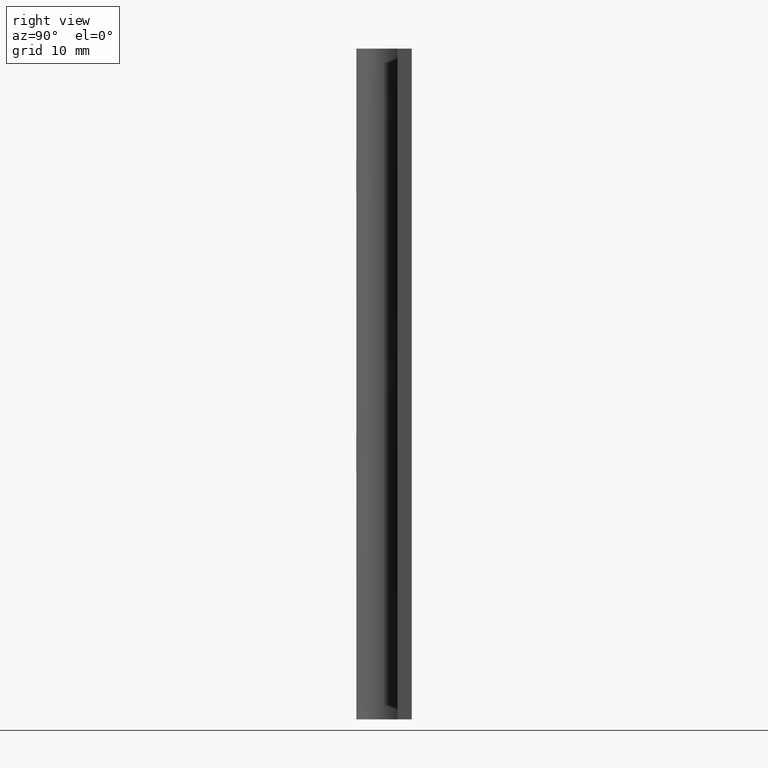
[diagram: clean part render]
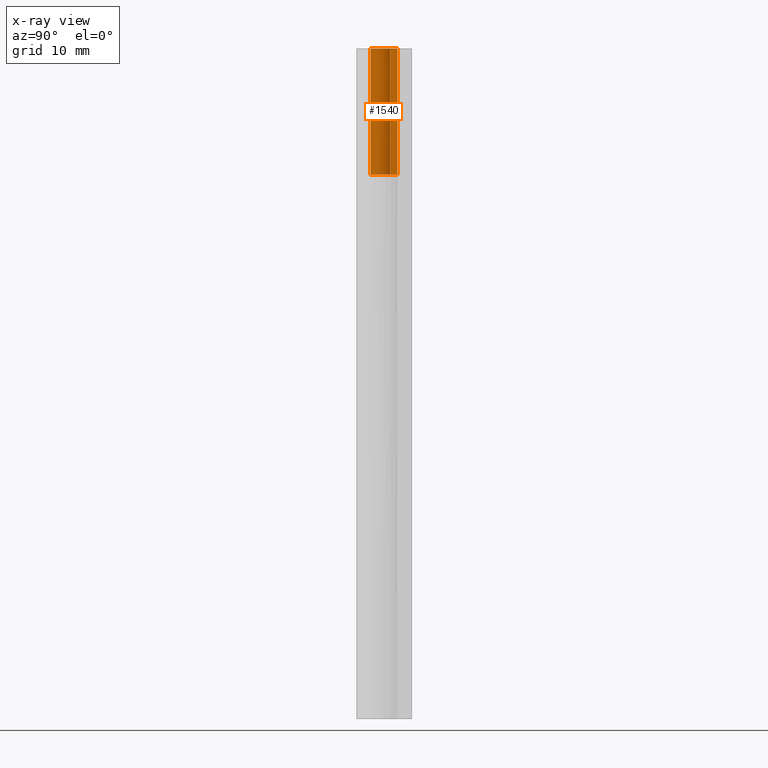
[diagram: x-ray — body ghosted, one internal face saturated and labeled with its STEP entity id]
A machine part, right view, then the same camera in x-ray: the body is ghosted and one INTERNAL B-rep face — a face not visible from any outside direction — is saturated and labeled: STEP entity #1540.
In plain terms, the highlighted face is a freeform B-spline surface patch.
Its self-contained STEP definition (entity closure, byte-faithful):
#1096=CARTESIAN_POINT('',(0.0,1.500000000000000,60.899993999999893));
#1097=VERTEX_POINT('',#1096);
#1103=CARTESIAN_POINT('',(1.325797621821314,0.701612903225808,60.899993999999893));
#1104=VERTEX_POINT('',#1103);
#1105=CARTESIAN_POINT('',(0.0,1.500000000000000,60.899993999999893));
#1106=CARTESIAN_POINT('',(-1.140047230937307,1.500000000000000,60.899993999999900));
#1107=CARTESIAN_POINT('',(-1.445249296287461,0.401565027835593,60.899993999999893));
#1108=CARTESIAN_POINT('',(-1.750451361637615,-0.696869944328815,60.899993999999900));
#1109=CARTESIAN_POINT('',(-0.773815431857393,-1.284994037892533,60.899993999999893));
#1110=CARTESIAN_POINT('',(0.202820497922827,-1.873118131456250,60.899993999999900));
#1111=CARTESIAN_POINT('',(1.030933009042893,-1.089576583295441,60.899993999999893));
#1112=CARTESIAN_POINT('',(1.859045520162959,-0.306035035134630,60.899993999999900));
#1113=CARTESIAN_POINT('',(1.325797621821314,0.701612903225808,60.899993999999893));
#1121=(BOUNDED_CURVE()B_SPLINE_CURVE(2,(#1105,#1106,#1107,#1108,#1109,#1110,#1111,#1112,#1113),.UNSPECIFIED.,.F.,.U.)B_SPLINE_CURVE_WITH_KNOTS((3,2,2,2,3),(0.0,0.250000000000000,0.500000000000000,0.750000000000000,1.0),.UNSPECIFIED.)CURVE()GEOMETRIC_REPRESENTATION_ITEM()RATIONAL_B_SPLINE_CURVE((1.0,0.796150117301085,1.0,0.796150117301085,1.0,0.796150117301085,1.0,0.796150117301085,1.0))REPRESENTATION_ITEM(''));
#1122=EDGE_CURVE('',#1097,#1104,#1121,.T.);
#1201=CARTESIAN_POINT('',(1.325797621821314,0.701612903225808,75.0));
#1202=VERTEX_POINT('',#1201);
#1208=CARTESIAN_POINT('',(0.0,1.500000000000000,75.0));
#1209=VERTEX_POINT('',#1208);
#1210=CARTESIAN_POINT('',(1.325797621821314,0.701612903225809,75.0));
#1211=CARTESIAN_POINT('',(1.859045520162960,-0.306035035134629,75.0));
#1212=CARTESIAN_POINT('',(1.030933009042894,-1.089576583295440,75.0));
#1213=CARTESIAN_POINT('',(0.202820497922828,-1.873118131456250,75.0));
#1214=CARTESIAN_POINT('',(-0.773815431857392,-1.284994037892534,75.0));
#1215=CARTESIAN_POINT('',(-1.750451361637613,-0.696869944328816,75.0));
#1216=CARTESIAN_POINT('',(-1.445249296287461,0.401565027835592,75.0));
#1217=CARTESIAN_POINT('',(-1.140047230937308,1.500000000000000,75.0));
#1218=CARTESIAN_POINT('',(0.0,1.500000000000000,75.0));
#1226=(BOUNDED_CURVE()B_SPLINE_CURVE(2,(#1210,#1211,#1212,#1213,#1214,#1215,#1216,#1217,#1218),.UNSPECIFIED.,.F.,.U.)B_SPLINE_CURVE_WITH_KNOTS((3,2,2,2,3),(0.0,0.250000000000000,0.500000000000000,0.750000000000000,1.0),.UNSPECIFIED.)CURVE()GEOMETRIC_REPRESENTATION_ITEM()RATIONAL_B_SPLINE_CURVE((1.0,0.796150117301085,1.0,0.796150117301085,1.0,0.796150117301085,1.0,0.796150117301085,1.0))REPRESENTATION_ITEM(''));
#1227=EDGE_CURVE('',#1202,#1209,#1226,.T.);
#1401=CARTESIAN_POINT('',(0.0,1.500000000000000,60.899993999999893));
#1402=CARTESIAN_POINT('',(0.0,1.500000000000000,75.0));
#1403=QUASI_UNIFORM_CURVE('',1,(#1401,#1402),.UNSPECIFIED.,.F.,.U.);
#1404=EDGE_CURVE('',#1097,#1209,#1403,.T.);
#1503=CARTESIAN_POINT('',(1.325797621821314,0.701612903225808,60.899993999999893));
#1504=CARTESIAN_POINT('',(1.325797621821314,0.701612903225808,75.0));
#1505=QUASI_UNIFORM_CURVE('',1,(#1503,#1504),.UNSPECIFIED.,.F.,.U.);
#1506=EDGE_CURVE('',#1104,#1202,#1505,.T.);
#1512=CARTESIAN_POINT('',(1.305533543909849,0.738635340155200,60.547493849999881));
#1513=CARTESIAN_POINT('',(1.305533543909849,0.738635340155200,75.361312653750005));
#1514=CARTESIAN_POINT('',(2.206899179836648,-0.854523027792384,60.547493849999888));
#1515=CARTESIAN_POINT('',(2.206899179836648,-0.854523027792384,75.361312653750005));
#1516=CARTESIAN_POINT('',(0.467673291524516,-1.425230399758097,60.547493849999881));
#1517=CARTESIAN_POINT('',(0.467673291524516,-1.425230399758097,75.361312653750005));
#1518=CARTESIAN_POINT('',(-1.271552596787615,-1.995937771723809,60.547493849999888));
#1519=CARTESIAN_POINT('',(-1.271552596787615,-1.995937771723809,75.361312653750005));
#1520=CARTESIAN_POINT('',(-1.489344683148763,-0.178472448228038,60.547493849999881));
#1521=CARTESIAN_POINT('',(-1.489344683148763,-0.178472448228038,75.361312653750005));
#1522=CARTESIAN_POINT('',(-1.707136769509911,1.638992875267735,60.547493849999888));
#1523=CARTESIAN_POINT('',(-1.707136769509911,1.638992875267735,75.361312653750005));
#1524=CARTESIAN_POINT('',(0.117688643591768,1.495376000599692,60.547493849999881));
#1525=CARTESIAN_POINT('',(0.117688643591768,1.495376000599692,75.361312653750005));
#1533=(BOUNDED_SURFACE()B_SPLINE_SURFACE(1,2,((#1512,#1514,#1516,#1518,#1520,#1522,#1524),(#1513,#1515,#1517,#1519,#1521,#1523,#1525)),.UNSPECIFIED.,.F.,.F.,.U.)B_SPLINE_SURFACE_WITH_KNOTS((2,2),(3,2,2,3),(0.0,14.813818803750131),(0.0,2.840458804494715,5.680917608989430,8.521376413484145),.UNSPECIFIED.)GEOMETRIC_REPRESENTATION_ITEM()RATIONAL_B_SPLINE_SURFACE(((1.0,0.633830967398710,1.0,0.633830967398710,1.0,0.633830967398710,1.0),(1.0,0.633830967398710,1.0,0.633830967398710,1.0,0.633830967398710,1.0)))REPRESENTATION_ITEM('')SURFACE());
#1534=ORIENTED_EDGE('',*,*,#1122,.F.);
#1535=ORIENTED_EDGE('',*,*,#1404,.T.);
#1536=ORIENTED_EDGE('',*,*,#1227,.F.);
#1537=ORIENTED_EDGE('',*,*,#1506,.F.);
#1538=EDGE_LOOP('',(#1534,#1535,#1536,#1537));
#1539=FACE_OUTER_BOUND('',#1538,.T.);
#1540=ADVANCED_FACE('',(#1539),#1533,.F.);